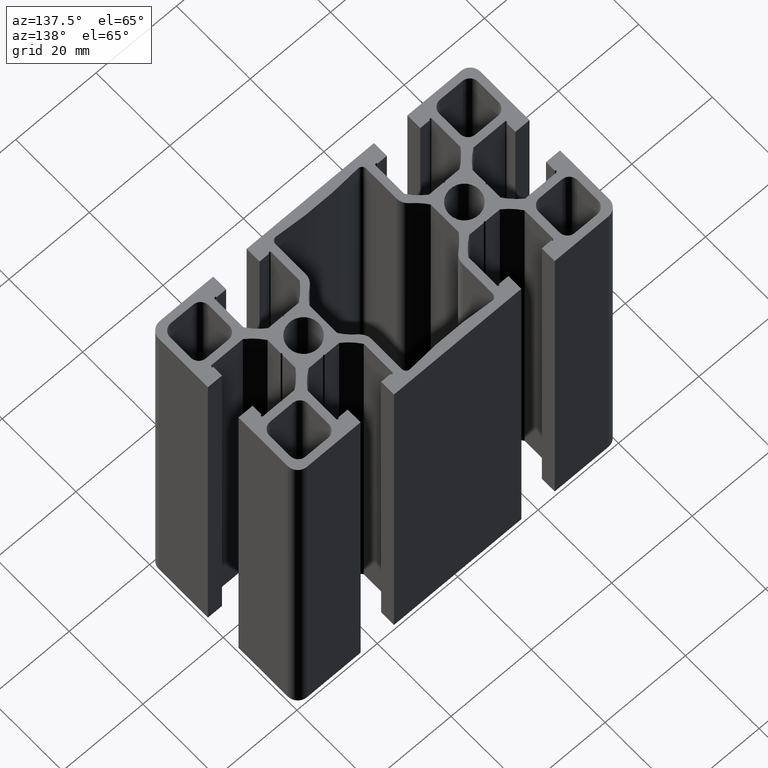
[diagram: clean part render]
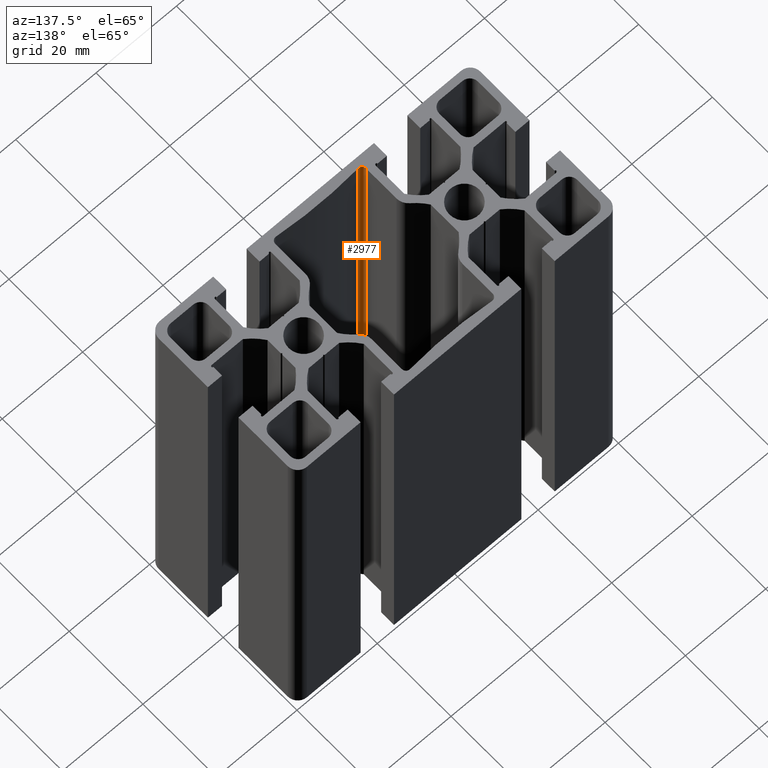
[diagram: same view with one face highlighted and labeled with its STEP entity id]
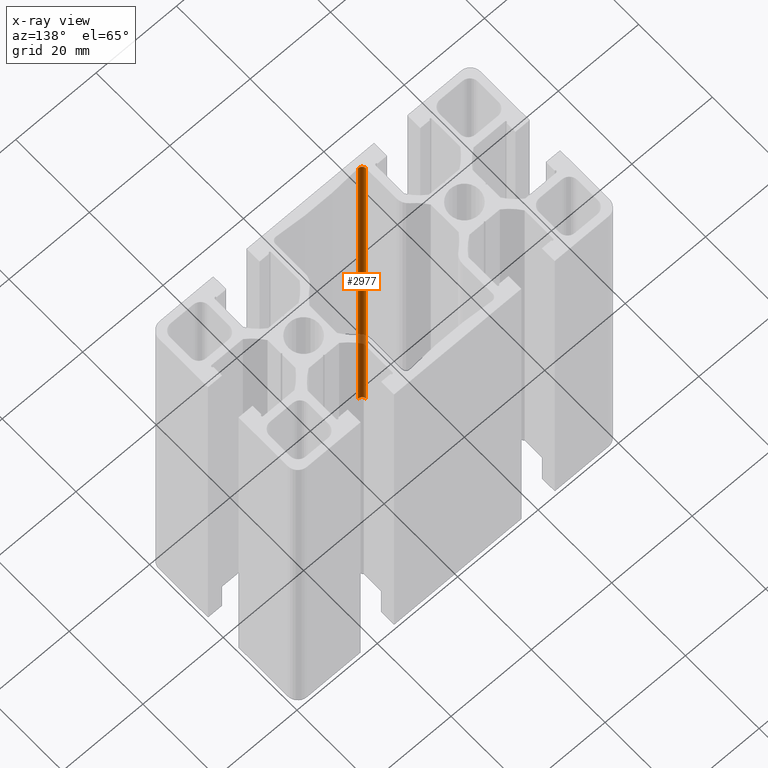
[diagram: x-ray of the same camera — body ghosted, the highlighted face saturated]
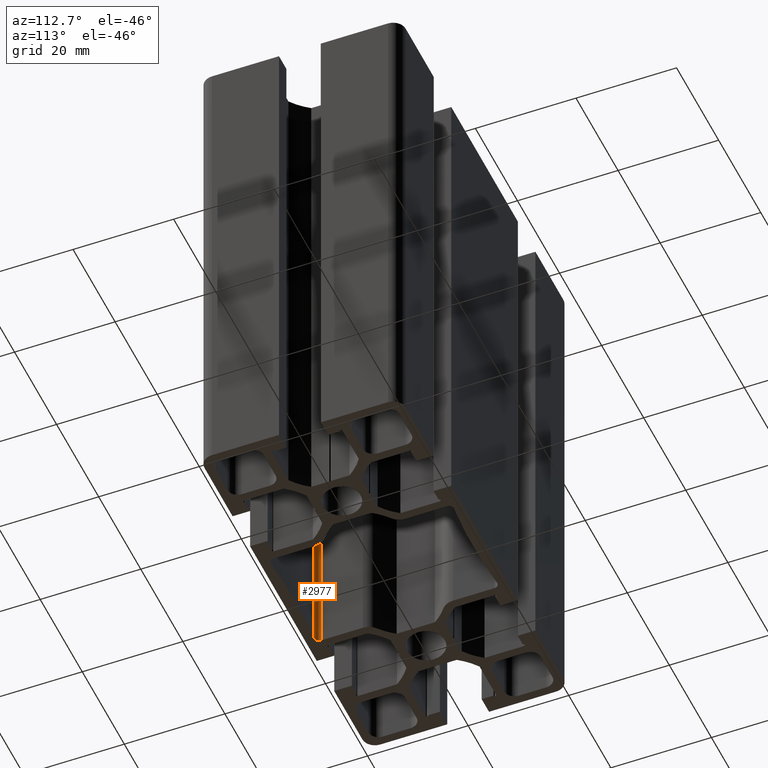
[diagram: same view with one face highlighted and labeled with its STEP entity id]
A machine part, auxiliary view. The second image highlights one B-rep face of the part: STEP entity #2977.
The next image is the same camera in x-ray: the body ghosted, the highlighted face saturated — about 27% of this face is hidden behind the body in this view.
A second angle (auxiliary view) of the same face is appended — the face is thin or edge-on in the first view.
In plain terms, the highlighted cylindrical surface (edge-blend (fillet) strip) has radius 1 mm, axis along (0, 0, 1).
Its self-contained STEP definition (entity closure, byte-faithful):
#139=FACE_OUTER_BOUND('',#293,.T.);
#293=EDGE_LOOP('',(#2051,#2052,#2053,#2054));
#471=LINE('',#4363,#805);
#472=LINE('',#4369,#806);
#805=VECTOR('',#3483,100.);
#806=VECTOR('',#3490,100.);
#1137=CIRCLE('',#3154,1.);
#1138=CIRCLE('',#3155,1.);
#1265=VERTEX_POINT('',#4360);
#1266=VERTEX_POINT('',#4362);
#1267=VERTEX_POINT('',#4366);
#1268=VERTEX_POINT('',#4368);
#1582=EDGE_CURVE('',#1265,#1266,#471,.T.);
#1584=EDGE_CURVE('',#1267,#1265,#1137,.T.);
#1585=EDGE_CURVE('',#1267,#1268,#472,.T.);
#1586=EDGE_CURVE('',#1266,#1268,#1138,.T.);
#2051=ORIENTED_EDGE('',*,*,#1584,.F.);
#2052=ORIENTED_EDGE('',*,*,#1585,.T.);
#2053=ORIENTED_EDGE('',*,*,#1586,.F.);
#2054=ORIENTED_EDGE('',*,*,#1582,.F.);
#2913=CYLINDRICAL_SURFACE('',#3153,1.);
#2977=ADVANCED_FACE('',(#139),#2913,.F.);
#3153=AXIS2_PLACEMENT_3D('',#4365,#3486,#3487);
#3154=AXIS2_PLACEMENT_3D('',#4367,#3488,#3489);
#3155=AXIS2_PLACEMENT_3D('',#4370,#3491,#3492);
#3483=DIRECTION('',(0.,0.,1.));
#3486=DIRECTION('center_axis',(0.,0.,1.));
#3487=DIRECTION('ref_axis',(1.,1.42108547152014E-13,0.));
#3488=DIRECTION('center_axis',(0.,0.,1.));
#3489=DIRECTION('ref_axis',(1.,1.42108547152014E-13,0.));
#3490=DIRECTION('',(0.,0.,1.));
#3491=DIRECTION('center_axis',(0.,0.,-1.));
#3492=DIRECTION('ref_axis',(1.,1.42108547152014E-13,0.));
#4360=CARTESIAN_POINT('',(-10.2043713733078,-18.1890356155768,0.));
#4362=CARTESIAN_POINT('',(-10.2043713733078,-18.1890356155768,100.));
#4363=CARTESIAN_POINT('',(-10.2043713733078,-18.1890356155768,0.));
#4365=CARTESIAN_POINT('Origin',(-10.3000000000003,-17.1936185342701,0.));
#4366=CARTESIAN_POINT('',(-11.3000000000003,-17.1936185342703,0.));
#4367=CARTESIAN_POINT('Origin',(-10.3000000000003,-17.1936185342701,0.));
#4368=CARTESIAN_POINT('',(-11.3000000000003,-17.1936185342703,100.));
#4369=CARTESIAN_POINT('',(-11.3000000000003,-17.1936185342703,0.));
#4370=CARTESIAN_POINT('Origin',(-10.3000000000003,-17.1936185342701,100.));